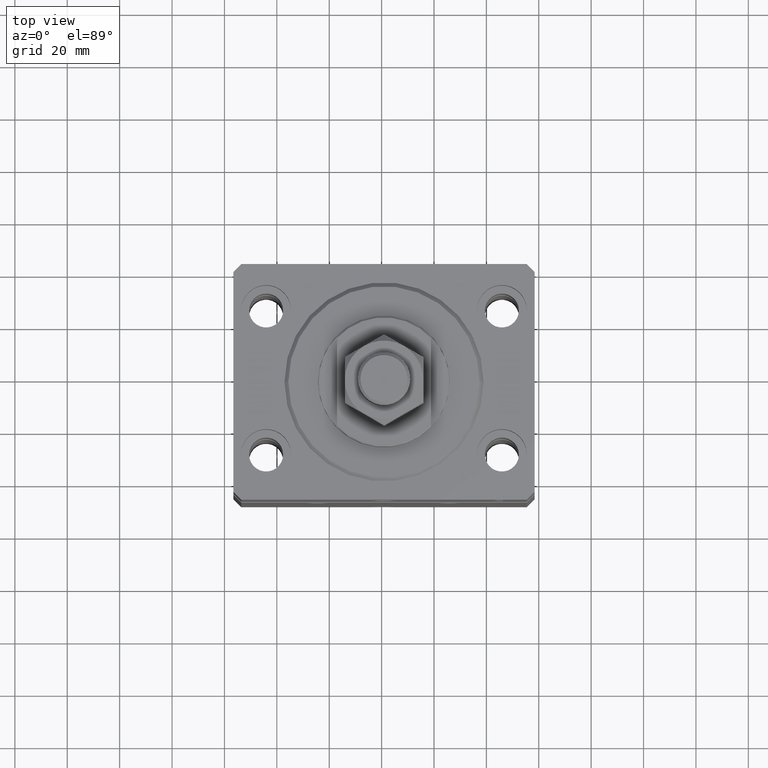
[diagram: clean part render]
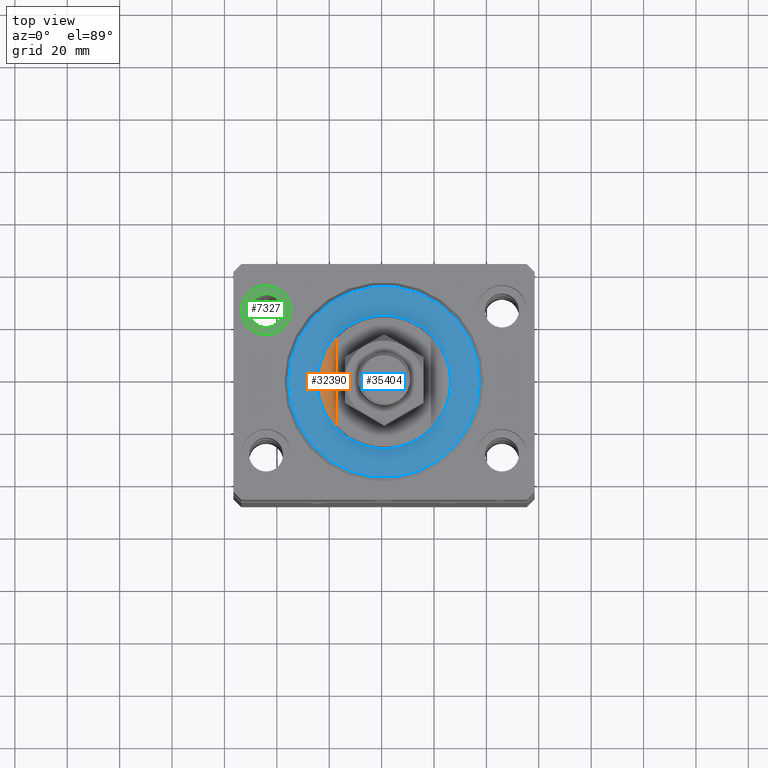
[diagram: same view with three faces highlighted in distinct colors, each labeled with its STEP entity id]
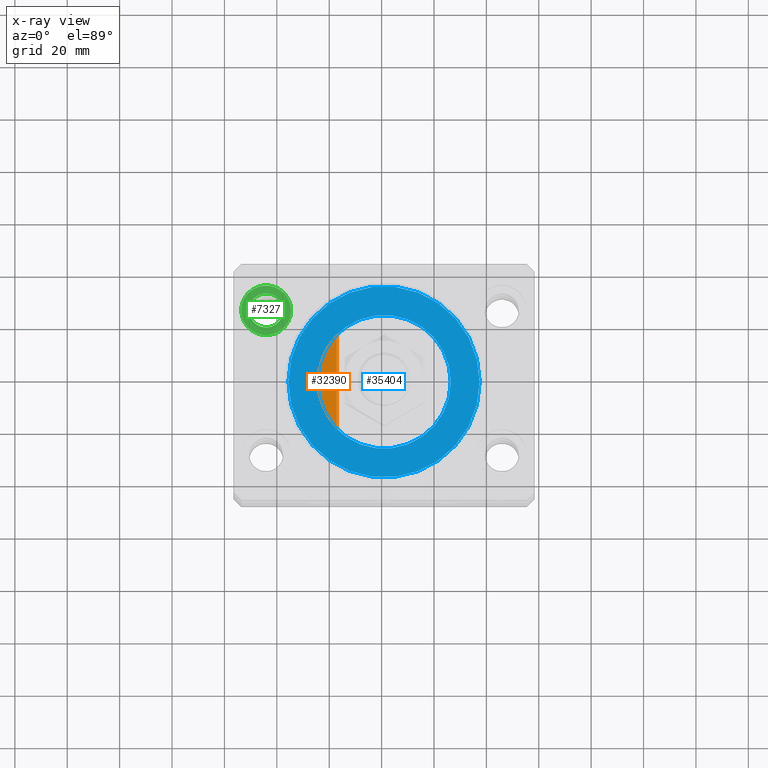
[diagram: x-ray of the same camera — body ghosted, the three highlighted faces saturated]
A machine part, top view with three faces highlighted in distinct colors.
The next image is the same camera in x-ray (body ghosted, the three faces saturated) — at least one of them is partly hidden behind the body in this view.
Their STEP definitions:

[orange] entity #32390 — the highlighted planar face has unit normal (0, 0, 1).
#360 = AXIS2_PLACEMENT_3D ( 'NONE', #33185, #19087, #7926 ) ;
#1205 = ORIENTED_EDGE ( 'NONE', *, *, #15009, .T. ) ;
#4041 = PLANE ( 'NONE',  #360 ) ;
#4644 = EDGE_CURVE ( 'NONE', #19309, #38015, #44275, .T. ) ;
#6179 = DIRECTION ( 'NONE',  ( -1.000000000000000000, 0.000000000000000000, 0.000000000000000000 ) ) ;
#7926 = DIRECTION ( 'NONE',  ( 1.000000000000000000, 0.000000000000000000, 0.000000000000000000 ) ) ;
#9422 = CARTESIAN_POINT ( 'NONE',  ( 0.000000000000000000, 0.000000000000000000, -1.000000000000000000 ) ) ;
#11199 = CARTESIAN_POINT ( 'NONE',  ( 18.00000000000000000, -41.24318125460256113, -1.000000000000000000 ) ) ;
#11494 = EDGE_LOOP ( 'NONE', ( #16227, #1205, #13271 ) ) ;
#11590 = CIRCLE ( 'NONE', #35671, 25.00000000000000000 ) ;
#11809 = FACE_OUTER_BOUND ( 'NONE', #11494, .T. ) ;
#11863 = CIRCLE ( 'NONE', #25067, 25.00000000000000000 ) ;
#13271 = ORIENTED_EDGE ( 'NONE', *, *, #4644, .F. ) ;
#13476 = CARTESIAN_POINT ( 'NONE',  ( 18.00000000000000000, -17.34935157289747920, -1.000000000000000000 ) ) ;
#13605 = VECTOR ( 'NONE', #40624, 1000.000000000000000 ) ;
#14505 = CARTESIAN_POINT ( 'NONE',  ( 25.00000000000000000, 0.000000000000000000, -1.000000000000000000 ) ) ;
#15009 = EDGE_CURVE ( 'NONE', #26283, #38015, #11590, .T. ) ;
#16227 = ORIENTED_EDGE ( 'NONE', *, *, #23913, .T. ) ;
#16618 = DIRECTION ( 'NONE',  ( 0.000000000000000000, 0.000000000000000000, -1.000000000000000000 ) ) ;
#19087 = DIRECTION ( 'NONE',  ( 0.000000000000000000, 0.000000000000000000, -1.000000000000000000 ) ) ;
#19309 = VERTEX_POINT ( 'NONE', #36771 ) ;
#20819 = DIRECTION ( 'NONE',  ( -1.000000000000000000, 0.000000000000000000, 0.000000000000000000 ) ) ;
#23913 = EDGE_CURVE ( 'NONE', #19309, #26283, #11863, .T. ) ;
#23995 = DIRECTION ( 'NONE',  ( 0.000000000000000000, 0.000000000000000000, -1.000000000000000000 ) ) ;
#25067 = AXIS2_PLACEMENT_3D ( 'NONE', #45818, #16618, #6179 ) ;
#26283 = VERTEX_POINT ( 'NONE', #14505 ) ;
#32390 = ADVANCED_FACE ( 'NONE', ( #11809 ), #4041, .T. ) ;
#33185 = CARTESIAN_POINT ( 'NONE',  ( 0.000000000000000000, 0.000000000000000000, -1.000000000000000000 ) ) ;
#35671 = AXIS2_PLACEMENT_3D ( 'NONE', #9422, #23995, #20819 ) ;
#36771 = CARTESIAN_POINT ( 'NONE',  ( 18.00000000000000000, 17.34935157289747920, -1.000000000000000000 ) ) ;
#38015 = VERTEX_POINT ( 'NONE', #13476 ) ;
#40624 = DIRECTION ( 'NONE',  ( 0.000000000000000000, -1.000000000000000000, -0.000000000000000000 ) ) ;
#44275 = LINE ( 'NONE', #11199, #13605 ) ;
#45818 = CARTESIAN_POINT ( 'NONE',  ( 0.000000000000000000, 0.000000000000000000, -1.000000000000000000 ) ) ;

[blue] entity #35404 — the highlighted planar face has unit normal (0, 0, -1).
#395 = DIRECTION ( 'NONE',  ( 1.000000000000000000, 0.000000000000000000, 0.000000000000000000 ) ) ;
#1824 = DIRECTION ( 'NONE',  ( 0.000000000000000000, 0.000000000000000000, 1.000000000000000000 ) ) ;
#2300 = CARTESIAN_POINT ( 'NONE',  ( 0.000000000000000000, 0.000000000000000000, 0.000000000000000000 ) ) ;
#2782 = AXIS2_PLACEMENT_3D ( 'NONE', #4410, #18952, #26726 ) ;
#3979 = EDGE_CURVE ( 'NONE', #38126, #9281, #12858, .T. ) ;
#4410 = CARTESIAN_POINT ( 'NONE',  ( 0.000000000000000000, 0.000000000000000000, 0.000000000000000000 ) ) ;
#7632 = CIRCLE ( 'NONE', #36364, 36.50000000000000000 ) ;
#8557 = ORIENTED_EDGE ( 'NONE', *, *, #42722, .T. ) ;
#8961 = CIRCLE ( 'NONE', #10509, 36.50000000000000000 ) ;
#9245 = EDGE_LOOP ( 'NONE', ( #42127, #16530 ) ) ;
#9281 = VERTEX_POINT ( 'NONE', #29920 ) ;
#10509 = AXIS2_PLACEMENT_3D ( 'NONE', #31121, #34779, #46217 ) ;
#10586 = DIRECTION ( 'NONE',  ( -0.000000000000000000, -0.000000000000000000, -1.000000000000000000 ) ) ;
#10738 = CARTESIAN_POINT ( 'NONE',  ( 36.50000000000000000, 0.000000000000000000, 0.000000000000000000 ) ) ;
#12858 = CIRCLE ( 'NONE', #37652, 25.50000000000000355 ) ;
#13078 = EDGE_CURVE ( 'NONE', #27939, #38339, #7632, .T. ) ;
#13913 = FACE_OUTER_BOUND ( 'NONE', #9245, .T. ) ;
#16530 = ORIENTED_EDGE ( 'NONE', *, *, #13078, .T. ) ;
#18721 = ORIENTED_EDGE ( 'NONE', *, *, #3979, .T. ) ;
#18952 = DIRECTION ( 'NONE',  ( 0.000000000000000000, 0.000000000000000000, 1.000000000000000000 ) ) ;
#22262 = CARTESIAN_POINT ( 'NONE',  ( 0.000000000000000000, 0.000000000000000000, 0.000000000000000000 ) ) ;
#24441 = CARTESIAN_POINT ( 'NONE',  ( 0.000000000000000000, 0.000000000000000000, 0.000000000000000000 ) ) ;
#26726 = DIRECTION ( 'NONE',  ( 1.000000000000000000, 0.000000000000000000, 0.000000000000000000 ) ) ;
#27939 = VERTEX_POINT ( 'NONE', #46888 ) ;
#29920 = CARTESIAN_POINT ( 'NONE',  ( 25.50000000000000355, 0.000000000000000000, 2.168404344971008868E-16 ) ) ;
#31121 = CARTESIAN_POINT ( 'NONE',  ( 0.000000000000000000, 0.000000000000000000, 0.000000000000000000 ) ) ;
#31445 = FACE_BOUND ( 'NONE', #42633, .T. ) ;
#34779 = DIRECTION ( 'NONE',  ( -0.000000000000000000, -0.000000000000000000, -1.000000000000000000 ) ) ;
#35337 = DIRECTION ( 'NONE',  ( 1.000000000000000000, 0.000000000000000000, -0.000000000000000000 ) ) ;
#35404 = ADVANCED_FACE ( 'NONE', ( #31445, #13913 ), #43130, .F. ) ;
#36364 = AXIS2_PLACEMENT_3D ( 'NONE', #24441, #10586, #40240 ) ;
#37337 = DIRECTION ( 'NONE',  ( 0.000000000000000000, 0.000000000000000000, 1.000000000000000000 ) ) ;
#37652 = AXIS2_PLACEMENT_3D ( 'NONE', #22262, #37337, #395 ) ;
#38126 = VERTEX_POINT ( 'NONE', #41914 ) ;
#38339 = VERTEX_POINT ( 'NONE', #10738 ) ;
#38570 = EDGE_CURVE ( 'NONE', #38339, #27939, #8961, .T. ) ;
#40118 = AXIS2_PLACEMENT_3D ( 'NONE', #2300, #1824, #35337 ) ;
#40240 = DIRECTION ( 'NONE',  ( 1.000000000000000000, 0.000000000000000000, 0.000000000000000000 ) ) ;
#41616 = CIRCLE ( 'NONE', #2782, 25.50000000000000355 ) ;
#41914 = CARTESIAN_POINT ( 'NONE',  ( -25.50000000000000355, 3.122849337825751011E-15, 2.168404344971008868E-16 ) ) ;
#42127 = ORIENTED_EDGE ( 'NONE', *, *, #38570, .T. ) ;
#42633 = EDGE_LOOP ( 'NONE', ( #8557, #18721 ) ) ;
#42722 = EDGE_CURVE ( 'NONE', #9281, #38126, #41616, .T. ) ;
#43130 = PLANE ( 'NONE',  #40118 ) ;
#46217 = DIRECTION ( 'NONE',  ( 1.000000000000000000, 0.000000000000000000, 0.000000000000000000 ) ) ;
#46888 = CARTESIAN_POINT ( 'NONE',  ( -36.50000000000000000, 4.561809326823889791E-15, 0.000000000000000000 ) ) ;

[green] entity #7327 — the highlighted planar face has unit normal (0, 0, 1).
#1258 = ORIENTED_EDGE ( 'NONE', *, *, #29441, .F. ) ;
#5377 = DIRECTION ( 'NONE',  ( 1.000000000000000000, 0.000000000000000000, 0.000000000000000000 ) ) ;
#6341 = ORIENTED_EDGE ( 'NONE', *, *, #22375, .T. ) ;
#7063 = EDGE_CURVE ( 'NONE', #29565, #25843, #7567, .T. ) ;
#7327 = ADVANCED_FACE ( 'NONE', ( #21327, #35925 ), #10398, .T. ) ;
#7567 = CIRCLE ( 'NONE', #8400, 9.500000000000001776 ) ;
#8266 = DIRECTION ( 'NONE',  ( 0.000000000000000000, 0.000000000000000000, 1.000000000000000000 ) ) ;
#8400 = AXIS2_PLACEMENT_3D ( 'NONE', #40349, #8266, #19666 ) ;
#9486 = CIRCLE ( 'NONE', #30408, 6.499999999999999112 ) ;
#10398 = PLANE ( 'NONE',  #20793 ) ;
#11352 = ORIENTED_EDGE ( 'NONE', *, *, #25944, .F. ) ;
#14186 = AXIS2_PLACEMENT_3D ( 'NONE', #47332, #40025, #21541 ) ;
#15794 = DIRECTION ( 'NONE',  ( 0.000000000000000000, 0.000000000000000000, 1.000000000000000000 ) ) ;
#16094 = EDGE_LOOP ( 'NONE', ( #1258, #11352 ) ) ;
#17444 = CARTESIAN_POINT ( 'NONE',  ( -45.00000000000000000, 27.50000000000000355, -13.00000000000000000 ) ) ;
#18457 = CARTESIAN_POINT ( 'NONE',  ( -45.00000000000000000, 27.50000000000000355, -13.00000000000000000 ) ) ;
#19666 = DIRECTION ( 'NONE',  ( 1.000000000000000000, 0.000000000000000000, 0.000000000000000000 ) ) ;
#20793 = AXIS2_PLACEMENT_3D ( 'NONE', #17444, #32278, #25206 ) ;
#21118 = CARTESIAN_POINT ( 'NONE',  ( -51.50000000000000000, 27.50000000000000355, -13.00000000000000000 ) ) ;
#21327 = FACE_BOUND ( 'NONE', #16094, .T. ) ;
#21541 = DIRECTION ( 'NONE',  ( 1.000000000000000000, 0.000000000000000000, 0.000000000000000000 ) ) ;
#22375 = EDGE_CURVE ( 'NONE', #25843, #29565, #45179, .T. ) ;
#23504 = VERTEX_POINT ( 'NONE', #21118 ) ;
#25050 = DIRECTION ( 'NONE',  ( 0.000000000000000000, 0.000000000000000000, 1.000000000000000000 ) ) ;
#25206 = DIRECTION ( 'NONE',  ( 1.000000000000000000, 0.000000000000000000, -0.000000000000000000 ) ) ;
#25843 = VERTEX_POINT ( 'NONE', #45538 ) ;
#25944 = EDGE_CURVE ( 'NONE', #23504, #30470, #9486, .T. ) ;
#29016 = CARTESIAN_POINT ( 'NONE',  ( -38.50000000000000000, 27.50000000000000355, -13.00000000000000000 ) ) ;
#29106 = ORIENTED_EDGE ( 'NONE', *, *, #7063, .T. ) ;
#29441 = EDGE_CURVE ( 'NONE', #30470, #23504, #32080, .T. ) ;
#29565 = VERTEX_POINT ( 'NONE', #46095 ) ;
#30408 = AXIS2_PLACEMENT_3D ( 'NONE', #18457, #25050, #36935 ) ;
#30470 = VERTEX_POINT ( 'NONE', #29016 ) ;
#32080 = CIRCLE ( 'NONE', #14186, 6.499999999999999112 ) ;
#32278 = DIRECTION ( 'NONE',  ( 0.000000000000000000, 0.000000000000000000, 1.000000000000000000 ) ) ;
#35925 = FACE_OUTER_BOUND ( 'NONE', #45976, .T. ) ;
#36935 = DIRECTION ( 'NONE',  ( 1.000000000000000000, 0.000000000000000000, 0.000000000000000000 ) ) ;
#37919 = CARTESIAN_POINT ( 'NONE',  ( -45.00000000000000000, 27.50000000000000355, -13.00000000000000000 ) ) ;
#40025 = DIRECTION ( 'NONE',  ( 0.000000000000000000, 0.000000000000000000, 1.000000000000000000 ) ) ;
#40349 = CARTESIAN_POINT ( 'NONE',  ( -45.00000000000000000, 27.50000000000000355, -13.00000000000000000 ) ) ;
#40517 = AXIS2_PLACEMENT_3D ( 'NONE', #37919, #15794, #5377 ) ;
#45179 = CIRCLE ( 'NONE', #40517, 9.500000000000001776 ) ;
#45538 = CARTESIAN_POINT ( 'NONE',  ( -35.50000000000000000, 27.50000000000000355, -13.00000000000000000 ) ) ;
#45976 = EDGE_LOOP ( 'NONE', ( #6341, #29106 ) ) ;
#46095 = CARTESIAN_POINT ( 'NONE',  ( -54.50000000000000000, 27.50000000000000355, -13.00000000000000000 ) ) ;
#47332 = CARTESIAN_POINT ( 'NONE',  ( -45.00000000000000000, 27.50000000000000355, -13.00000000000000000 ) ) ;